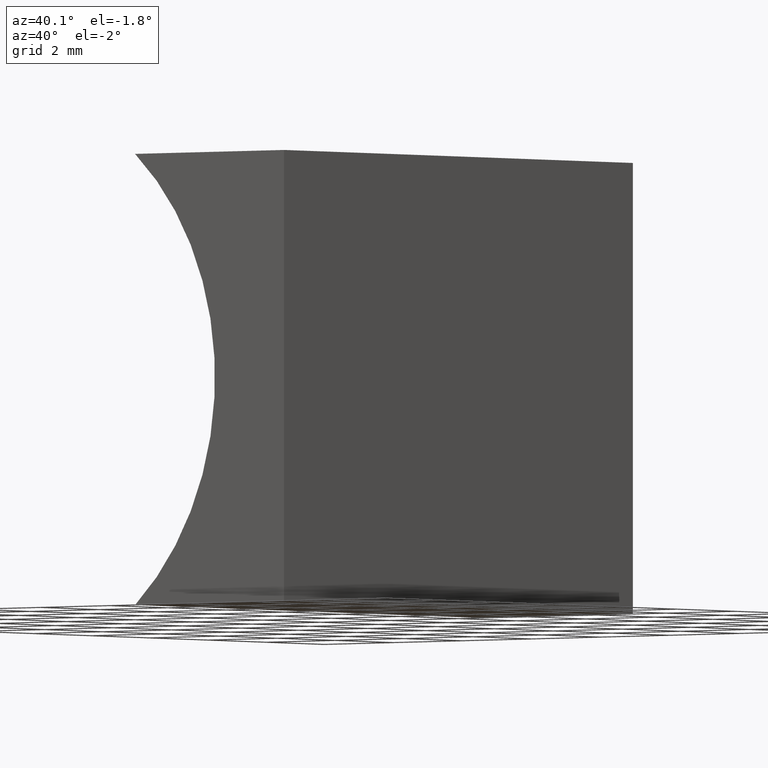
[diagram: clean part render]
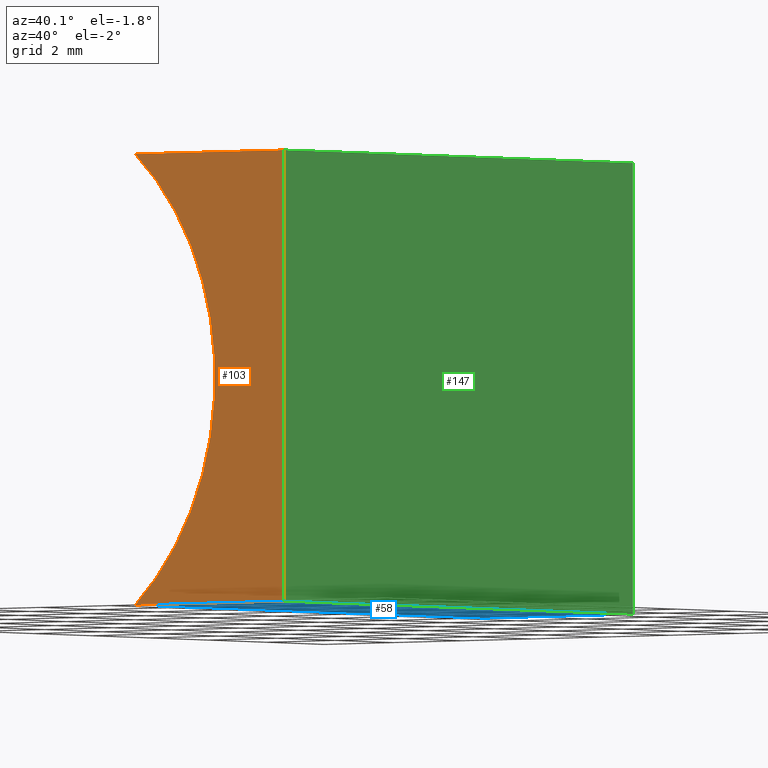
[diagram: same view with three faces highlighted in distinct colors, each labeled with its STEP entity id]
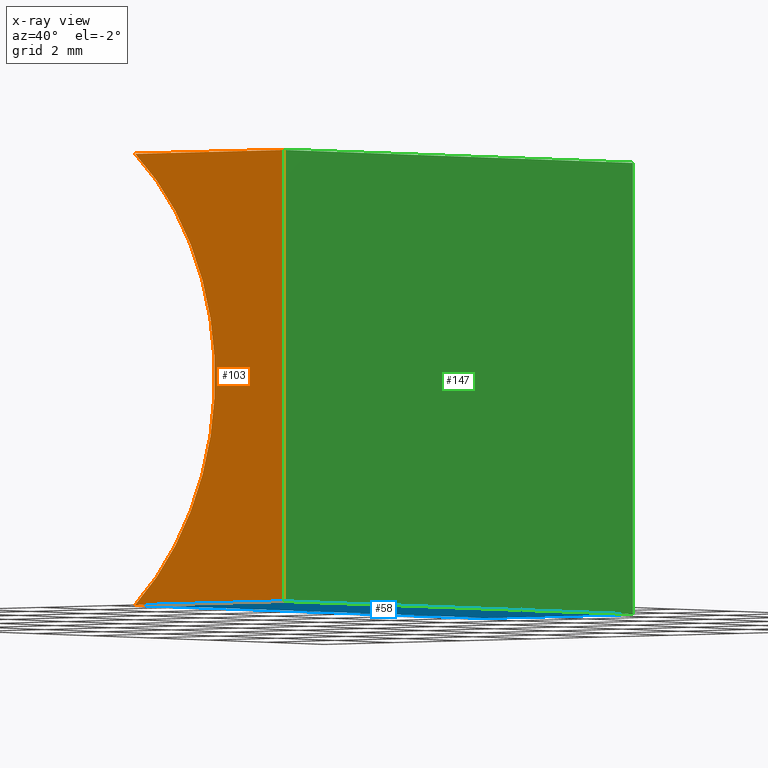
[diagram: x-ray of the same camera — body ghosted, the three highlighted faces saturated]
A machine part, auxiliary view with three faces highlighted in distinct colors.
The next image is the same camera in x-ray (body ghosted, the three faces saturated) — at least one of them is partly hidden behind the body in this view.
Their STEP definitions:

[orange] entity #103 — the highlighted planar face has unit normal (0, 1, 0).
#1 = VECTOR ( 'NONE', #193, 1000.000000000000000 ) ;
#2 = VERTEX_POINT ( 'NONE', #173 ) ;
#9 = CARTESIAN_POINT ( 'NONE',  ( 0.0000000000000000000, 0.0000000000000000000, 0.0000000000000000000 ) ) ;
#11 = VERTEX_POINT ( 'NONE', #53 ) ;
#35 = ORIENTED_EDGE ( 'NONE', *, *, #98, .F. ) ;
#40 = LINE ( 'NONE', #123, #159 ) ;
#46 = CARTESIAN_POINT ( 'NONE',  ( -4.313401361089087300, 0.0000000000000000000, 9.999999999999998200 ) ) ;
#53 = CARTESIAN_POINT ( 'NONE',  ( -4.313401361089087300, 0.0000000000000000000, 2.602085213965210600E-015 ) ) ;
#55 = AXIS2_PLACEMENT_3D ( 'NONE', #64, #75, #150 ) ;
#61 = ORIENTED_EDGE ( 'NONE', *, *, #184, .F. ) ;
#64 = CARTESIAN_POINT ( 'NONE',  ( -8.560000000000000500, 0.0000000000000000000, 5.000000000000000000 ) ) ;
#68 = EDGE_LOOP ( 'NONE', ( #35, #99, #108, #61 ) ) ;
#69 = DIRECTION ( 'NONE',  ( -0.0000000000000000000, -1.000000000000000000, -0.0000000000000000000 ) ) ;
#73 = AXIS2_PLACEMENT_3D ( 'NONE', #164, #69, #87 ) ;
#75 = DIRECTION ( 'NONE',  ( 0.0000000000000000000, 1.000000000000000000, 0.0000000000000000000 ) ) ;
#80 = EDGE_CURVE ( 'NONE', #2, #112, #91, .T. ) ;
#87 = DIRECTION ( 'NONE',  ( 0.0000000000000000000, 0.0000000000000000000, 1.000000000000000000 ) ) ;
#91 = LINE ( 'NONE', #9, #136 ) ;
#94 = LINE ( 'NONE', #176, #1 ) ;
#98 = EDGE_CURVE ( 'NONE', #112, #11, #94, .T. ) ;
#99 = ORIENTED_EDGE ( 'NONE', *, *, #80, .F. ) ;
#103 = ADVANCED_FACE ( 'NONE', ( #142 ), #186, .F. ) ;
#106 = DIRECTION ( 'NONE',  ( 1.000000000000000000, -0.0000000000000000000, 4.021706608676934700E-016 ) ) ;
#108 = ORIENTED_EDGE ( 'NONE', *, *, #171, .F. ) ;
#112 = VERTEX_POINT ( 'NONE', #190 ) ;
#121 = DIRECTION ( 'NONE',  ( -6.123233995736766000E-017, -0.0000000000000000000, -1.000000000000000000 ) ) ;
#123 = CARTESIAN_POINT ( 'NONE',  ( 6.123233995736766300E-016, 0.0000000000000000000, 10.00000000000000000 ) ) ;
#125 = VERTEX_POINT ( 'NONE', #46 ) ;
#136 = VECTOR ( 'NONE', #121, 1000.000000000000000 ) ;
#142 = FACE_OUTER_BOUND ( 'NONE', #68, .T. ) ;
#150 = DIRECTION ( 'NONE',  ( 0.0000000000000000000, -0.0000000000000000000, 1.000000000000000000 ) ) ;
#159 = VECTOR ( 'NONE', #106, 1000.000000000000000 ) ;
#164 = CARTESIAN_POINT ( 'NONE',  ( -8.560000000000000500, 0.0000000000000000000, 5.000000000000000000 ) ) ;
#171 = EDGE_CURVE ( 'NONE', #125, #2, #40, .T. ) ;
#173 = CARTESIAN_POINT ( 'NONE',  ( 6.123233995736766300E-016, 0.0000000000000000000, 10.00000000000000000 ) ) ;
#175 = CIRCLE ( 'NONE', #73, 6.560000000000000500 ) ;
#176 = CARTESIAN_POINT ( 'NONE',  ( 0.0000000000000000000, 0.0000000000000000000, 0.0000000000000000000 ) ) ;
#184 = EDGE_CURVE ( 'NONE', #11, #125, #175, .T. ) ;
#186 = PLANE ( 'NONE',  #55 ) ;
#190 = CARTESIAN_POINT ( 'NONE',  ( 0.0000000000000000000, 0.0000000000000000000, 0.0000000000000000000 ) ) ;
#193 = DIRECTION ( 'NONE',  ( -1.000000000000000000, 0.0000000000000000000, 4.021706608676934700E-016 ) ) ;

[blue] entity #58 — the highlighted planar face has unit normal (0, -0, 1).
#1 = VECTOR ( 'NONE', #193, 1000.000000000000000 ) ;
#3 = VECTOR ( 'NONE', #93, 1000.000000000000000 ) ;
#11 = VERTEX_POINT ( 'NONE', #53 ) ;
#13 = ORIENTED_EDGE ( 'NONE', *, *, #22, .F. ) ;
#16 = VERTEX_POINT ( 'NONE', #95 ) ;
#19 = VECTOR ( 'NONE', #83, 1000.000000000000000 ) ;
#21 = EDGE_CURVE ( 'NONE', #16, #112, #72, .T. ) ;
#22 = EDGE_CURVE ( 'NONE', #16, #89, #38, .T. ) ;
#37 = ORIENTED_EDGE ( 'NONE', *, *, #21, .T. ) ;
#38 = LINE ( 'NONE', #145, #19 ) ;
#45 = CARTESIAN_POINT ( 'NONE',  ( 0.0000000000000000000, 12.00000000000000000, 0.0000000000000000000 ) ) ;
#53 = CARTESIAN_POINT ( 'NONE',  ( -4.313401361089087300, 0.0000000000000000000, 2.602085213965210600E-015 ) ) ;
#56 = CARTESIAN_POINT ( 'NONE',  ( -4.313401361089087300, 12.00000000000000000, 2.602085213965210600E-015 ) ) ;
#58 = ADVANCED_FACE ( 'NONE', ( #107 ), #67, .F. ) ;
#67 = PLANE ( 'NONE',  #192 ) ;
#70 = ORIENTED_EDGE ( 'NONE', *, *, #98, .T. ) ;
#72 = LINE ( 'NONE', #109, #166 ) ;
#83 = DIRECTION ( 'NONE',  ( -1.000000000000000000, 0.0000000000000000000, 4.021706608676934700E-016 ) ) ;
#89 = VERTEX_POINT ( 'NONE', #115 ) ;
#90 = EDGE_LOOP ( 'NONE', ( #70, #113, #13, #37 ) ) ;
#92 = DIRECTION ( 'NONE',  ( -0.0000000000000000000, -1.000000000000000000, -0.0000000000000000000 ) ) ;
#93 = DIRECTION ( 'NONE',  ( -0.0000000000000000000, -1.000000000000000000, -0.0000000000000000000 ) ) ;
#94 = LINE ( 'NONE', #176, #1 ) ;
#95 = CARTESIAN_POINT ( 'NONE',  ( 0.0000000000000000000, 12.00000000000000000, 0.0000000000000000000 ) ) ;
#98 = EDGE_CURVE ( 'NONE', #112, #11, #94, .T. ) ;
#107 = FACE_OUTER_BOUND ( 'NONE', #90, .T. ) ;
#109 = CARTESIAN_POINT ( 'NONE',  ( 0.0000000000000000000, 12.00000000000000000, 0.0000000000000000000 ) ) ;
#112 = VERTEX_POINT ( 'NONE', #190 ) ;
#113 = ORIENTED_EDGE ( 'NONE', *, *, #135, .F. ) ;
#115 = CARTESIAN_POINT ( 'NONE',  ( -4.313401361089087300, 12.00000000000000000, 2.602085213965210600E-015 ) ) ;
#118 = LINE ( 'NONE', #56, #3 ) ;
#133 = DIRECTION ( 'NONE',  ( 4.021706608676934700E-016, -0.0000000000000000000, 1.000000000000000000 ) ) ;
#135 = EDGE_CURVE ( 'NONE', #89, #11, #118, .T. ) ;
#145 = CARTESIAN_POINT ( 'NONE',  ( 0.0000000000000000000, 12.00000000000000000, 0.0000000000000000000 ) ) ;
#156 = DIRECTION ( 'NONE',  ( 1.000000000000000000, 0.0000000000000000000, -4.021706608676934700E-016 ) ) ;
#166 = VECTOR ( 'NONE', #92, 1000.000000000000000 ) ;
#176 = CARTESIAN_POINT ( 'NONE',  ( 0.0000000000000000000, 0.0000000000000000000, 0.0000000000000000000 ) ) ;
#190 = CARTESIAN_POINT ( 'NONE',  ( 0.0000000000000000000, 0.0000000000000000000, 0.0000000000000000000 ) ) ;
#192 = AXIS2_PLACEMENT_3D ( 'NONE', #45, #133, #156 ) ;
#193 = DIRECTION ( 'NONE',  ( -1.000000000000000000, 0.0000000000000000000, 4.021706608676934700E-016 ) ) ;

[green] entity #147 — the highlighted planar face has unit normal (-1, 0, 0).
#2 = VERTEX_POINT ( 'NONE', #173 ) ;
#5 = DIRECTION ( 'NONE',  ( -1.000000000000000000, 0.0000000000000000000, 6.123233995736766000E-017 ) ) ;
#9 = CARTESIAN_POINT ( 'NONE',  ( 0.0000000000000000000, 0.0000000000000000000, 0.0000000000000000000 ) ) ;
#16 = VERTEX_POINT ( 'NONE', #95 ) ;
#20 = ORIENTED_EDGE ( 'NONE', *, *, #49, .F. ) ;
#21 = EDGE_CURVE ( 'NONE', #16, #112, #72, .T. ) ;
#30 = ORIENTED_EDGE ( 'NONE', *, *, #21, .F. ) ;
#33 = CARTESIAN_POINT ( 'NONE',  ( 0.0000000000000000000, 12.00000000000000000, 0.0000000000000000000 ) ) ;
#34 = DIRECTION ( 'NONE',  ( -0.0000000000000000000, -1.000000000000000000, -0.0000000000000000000 ) ) ;
#43 = EDGE_CURVE ( 'NONE', #50, #2, #155, .T. ) ;
#44 = VECTOR ( 'NONE', #143, 1000.000000000000000 ) ;
#49 = EDGE_CURVE ( 'NONE', #50, #16, #188, .T. ) ;
#50 = VERTEX_POINT ( 'NONE', #132 ) ;
#52 = EDGE_LOOP ( 'NONE', ( #174, #30, #20, #78 ) ) ;
#72 = LINE ( 'NONE', #109, #166 ) ;
#78 = ORIENTED_EDGE ( 'NONE', *, *, #43, .T. ) ;
#80 = EDGE_CURVE ( 'NONE', #2, #112, #91, .T. ) ;
#84 = CARTESIAN_POINT ( 'NONE',  ( 6.123233995736766300E-016, 12.00000000000000000, 10.00000000000000000 ) ) ;
#91 = LINE ( 'NONE', #9, #136 ) ;
#92 = DIRECTION ( 'NONE',  ( -0.0000000000000000000, -1.000000000000000000, -0.0000000000000000000 ) ) ;
#95 = CARTESIAN_POINT ( 'NONE',  ( 0.0000000000000000000, 12.00000000000000000, 0.0000000000000000000 ) ) ;
#109 = CARTESIAN_POINT ( 'NONE',  ( 0.0000000000000000000, 12.00000000000000000, 0.0000000000000000000 ) ) ;
#112 = VERTEX_POINT ( 'NONE', #190 ) ;
#121 = DIRECTION ( 'NONE',  ( -6.123233995736766000E-017, -0.0000000000000000000, -1.000000000000000000 ) ) ;
#126 = PLANE ( 'NONE',  #129 ) ;
#129 = AXIS2_PLACEMENT_3D ( 'NONE', #33, #5, #130 ) ;
#130 = DIRECTION ( 'NONE',  ( 6.123233995736766000E-017, 0.0000000000000000000, 1.000000000000000000 ) ) ;
#132 = CARTESIAN_POINT ( 'NONE',  ( 6.123233995736766300E-016, 12.00000000000000000, 10.00000000000000000 ) ) ;
#136 = VECTOR ( 'NONE', #121, 1000.000000000000000 ) ;
#143 = DIRECTION ( 'NONE',  ( -6.123233995736766000E-017, -0.0000000000000000000, -1.000000000000000000 ) ) ;
#147 = ADVANCED_FACE ( 'NONE', ( #194 ), #126, .F. ) ;
#148 = CARTESIAN_POINT ( 'NONE',  ( 0.0000000000000000000, 12.00000000000000000, 0.0000000000000000000 ) ) ;
#155 = LINE ( 'NONE', #84, #163 ) ;
#163 = VECTOR ( 'NONE', #34, 1000.000000000000000 ) ;
#166 = VECTOR ( 'NONE', #92, 1000.000000000000000 ) ;
#173 = CARTESIAN_POINT ( 'NONE',  ( 6.123233995736766300E-016, 0.0000000000000000000, 10.00000000000000000 ) ) ;
#174 = ORIENTED_EDGE ( 'NONE', *, *, #80, .T. ) ;
#188 = LINE ( 'NONE', #148, #44 ) ;
#190 = CARTESIAN_POINT ( 'NONE',  ( 0.0000000000000000000, 0.0000000000000000000, 0.0000000000000000000 ) ) ;
#194 = FACE_OUTER_BOUND ( 'NONE', #52, .T. ) ;